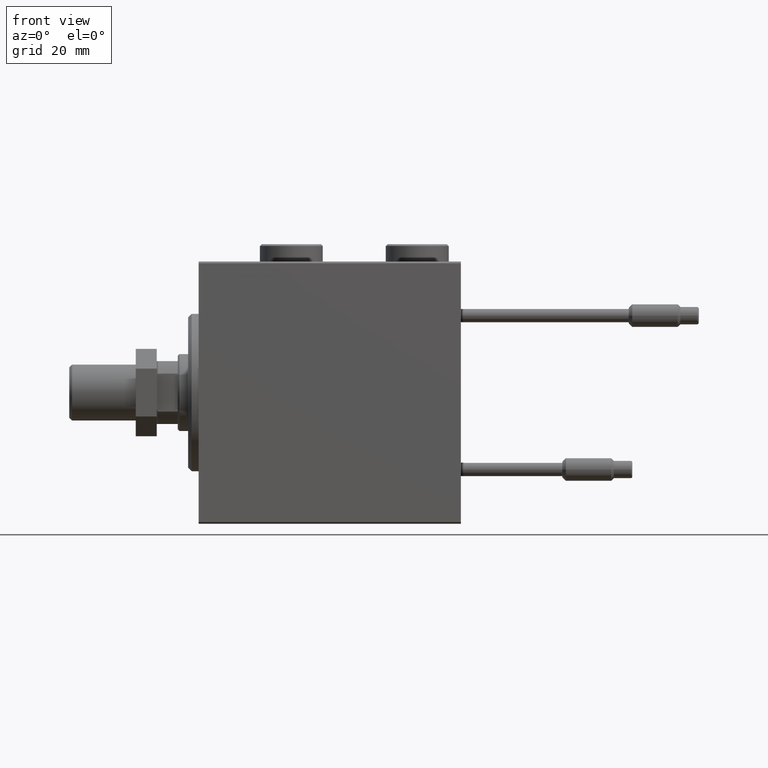
[diagram: clean part render]
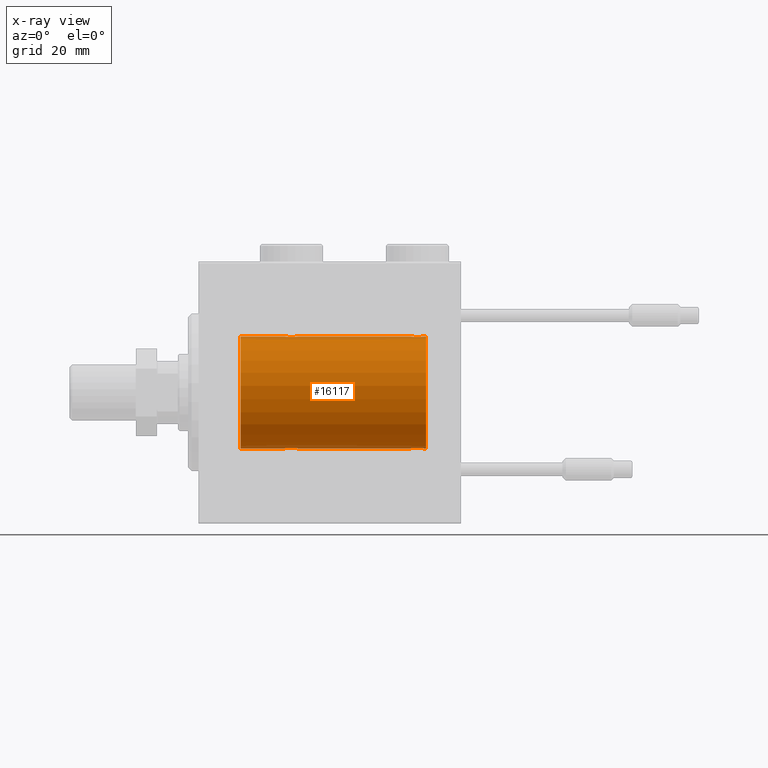
[diagram: x-ray — body ghosted, one internal face saturated and labeled with its STEP entity id]
A machine part, front view, then the same camera in x-ray: the body is ghosted and one INTERNAL B-rep face — a face not visible from any outside direction — is saturated and labeled: STEP entity #16117.
In plain terms, the highlighted cylindrical surface (partial cylindrical patch) has radius 16 mm, axis along (-1, -0, -0).
Its self-contained STEP definition (entity closure, byte-faithful):
#400 = CARTESIAN_POINT ( 'NONE',  ( 26.76370462878175971, -1.986819684797417995, -15.87618369521984185 ) ) ;
#1647 = CARTESIAN_POINT ( 'NONE',  ( 24.90236864042801557, -1.231048876942801407, -15.95364199493483426 ) ) ;
#1756 = CARTESIAN_POINT ( 'NONE',  ( 60.49999999999999289, -9.573340169032840992E-15, -16.00000000000000000 ) ) ;
#1927 = VERTEX_POINT ( 'NONE', #45687 ) ;
#2026 = CARTESIAN_POINT ( 'NONE',  ( 63.01937114547926910, -1.935780515549996306, -15.88248768234623221 ) ) ;
#2179 = CARTESIAN_POINT ( 'NONE',  ( 28.49999999999999645, 1.959434851238818770E-15, -16.00000000000000000 ) ) ;
#2937 = CARTESIAN_POINT ( 'NONE',  ( 62.36633336824382212, -1.999904855391102743, 15.87451985347842687 ) ) ;
#3730 = VERTEX_POINT ( 'NONE', #50476 ) ;
#3732 = CARTESIAN_POINT ( 'NONE',  ( 61.49679215208682592, -1.735114343256364711, 15.90580722143557502 ) ) ;
#4243 = CARTESIAN_POINT ( 'NONE',  ( 63.82104334803405266, -1.507256214862773058, 15.92911555180482175 ) ) ;
#4416 = CARTESIAN_POINT ( 'NONE',  ( 25.28178127159715416, -1.591545514129671046, -15.92081325887754950 ) ) ;
#5172 = CIRCLE ( 'NONE', #41287, 16.00000000000000000 ) ;
#5533 = CARTESIAN_POINT ( 'NONE',  ( 61.98335998918948775, -1.936513707523816574, -15.88239801746205515 ) ) ;
#5582 = AXIS2_PLACEMENT_3D ( 'NONE', #53195, #49416, #39549 ) ;
#5689 = CARTESIAN_POINT ( 'NONE',  ( 26.23917179650635845, -1.987201773464429833, -15.87613558886576115 ) ) ;
#5950 = CARTESIAN_POINT ( 'NONE',  ( 24.50000000000001066, -0.2645044045393414867, -16.00000000000000711 ) ) ;
#6122 = CARTESIAN_POINT ( 'NONE',  ( 60.50000000000000711, -2.739595594696790848E-23, 16.00000000000000000 ) ) ;
#6227 = CARTESIAN_POINT ( 'NONE',  ( 25.61407850031505262, -1.797863738508699516, -15.89874935709250892 ) ) ;
#7277 = DIRECTION ( 'NONE',  ( -1.000000000000000000, -0.000000000000000000, -0.000000000000000000 ) ) ;
#7427 = VERTEX_POINT ( 'NONE', #8244 ) ;
#7765 = CARTESIAN_POINT ( 'NONE',  ( 60.90061418674617499, -1.228793614424115166, 15.95381972293796835 ) ) ;
#7914 = CARTESIAN_POINT ( 'NONE',  ( 25.27971966521589664, -1.589957129871035768, 15.92097237843274549 ) ) ;
#8034 = CARTESIAN_POINT ( 'NONE',  ( 61.98062885452072379, -1.935780515549986980, 15.88248768234623576 ) ) ;
#8244 = CARTESIAN_POINT ( 'NONE',  ( 60.49999999999999289, -9.573340169032840992E-15, -16.00000000000000000 ) ) ;
#8396 = ORIENTED_EDGE ( 'NONE', *, *, #41388, .T. ) ;
#8437 = CARTESIAN_POINT ( 'NONE',  ( 25.61153859170720537, -1.796613193944160969, 15.89889131367403685 ) ) ;
#9090 = CARTESIAN_POINT ( 'NONE',  ( 63.71821872840284584, -1.591545514129670380, 15.92081325887754950 ) ) ;
#9131 = EDGE_CURVE ( 'NONE', #7427, #26266, #33365, .T. ) ;
#9353 = CARTESIAN_POINT ( 'NONE',  ( 63.50078365753401499, -1.736521253711142521, 15.90565326803670665 ) ) ;
#9752 = VERTEX_POINT ( 'NONE', #10511 ) ;
#10016 = VERTEX_POINT ( 'NONE', #6122 ) ;
#10107 = CARTESIAN_POINT ( 'NONE',  ( 62.63366663175617788, -1.999904855391111846, -15.87451985347842331 ) ) ;
#10269 = CARTESIAN_POINT ( 'NONE',  ( 27.14636362870457731, -1.897207606501644550, -15.88720136683946826 ) ) ;
#10283 = ORIENTED_EDGE ( 'NONE', *, *, #9131, .T. ) ;
#10343 = EDGE_CURVE ( 'NONE', #10016, #30045, #24104, .T. ) ;
#10379 = CARTESIAN_POINT ( 'NONE',  ( 61.28178127159713284, -1.591545514129680150, -15.92081325887754417 ) ) ;
#10510 = VECTOR ( 'NONE', #42993, 1000.000000000000000 ) ;
#10511 = CARTESIAN_POINT ( 'NONE',  ( 65.00000000000000000, 1.959434878635765131E-15, -16.00000000000000000 ) ) ;
#11828 = CARTESIAN_POINT ( 'NONE',  ( 60.75183372993787145, -1.005876079953899493, 15.97016854943969832 ) ) ;
#12355 = CARTESIAN_POINT ( 'NONE',  ( 62.23629537121826871, -1.986819684797415331, 15.87618369521984896 ) ) ;
#12503 = CARTESIAN_POINT ( 'NONE',  ( 26.23629537121825095, -1.986819684797424435, 15.87618369521983475 ) ) ;
#13253 = ORIENTED_EDGE ( 'NONE', *, *, #19918, .F. ) ;
#13512 = CARTESIAN_POINT ( 'NONE',  ( 26.36919591423421494, -2.000094120337574388, -15.87449600834270669 ) ) ;
#13898 = LINE ( 'NONE', #27114, #10510 ) ;
#14046 = CARTESIAN_POINT ( 'NONE',  ( 27.01937114547927266, -1.935780515549990088, -15.88248768234623221 ) ) ;
#14160 = CARTESIAN_POINT ( 'NONE',  ( 64.50000000000000000, -0.2611263091397180713, -16.00000000000000355 ) ) ;
#14423 = CARTESIAN_POINT ( 'NONE',  ( 64.24816627006210012, -1.005876079953901048, -15.97016854943970188 ) ) ;
#14961 = CARTESIAN_POINT ( 'NONE',  ( 24.50000000000000000, -2.739635037742051899E-23, 16.00000000000000000 ) ) ;
#15385 = EDGE_CURVE ( 'NONE', #9752, #16368, #45167, .T. ) ;
#15630 = FACE_OUTER_BOUND ( 'NONE', #36864, .T. ) ;
#15667 = VERTEX_POINT ( 'NONE', #43985 ) ;
#15744 = CARTESIAN_POINT ( 'NONE',  ( 27.71821872840285295, -1.591545514129674821, 15.92081325887754595 ) ) ;
#15866 = CARTESIAN_POINT ( 'NONE',  ( 60.55248858968734282, -0.5244724041436312767, 15.99321727742821686 ) ) ;
#16010 = CARTESIAN_POINT ( 'NONE',  ( 26.63080408576578861, -2.000094120337581050, 15.87449600834271735 ) ) ;
#16117 = ADVANCED_FACE ( 'NONE', ( #15630 ), #32093, .F. ) ;
#16158 = DIRECTION ( 'NONE',  ( 0.000000000000000000, 0.000000000000000000, 1.000000000000000000 ) ) ;
#16219 = B_SPLINE_CURVE_WITH_KNOTS ( 'NONE', 3,
 ( #44677, #36352, #15866, #11828, #7765, #48976, #40638, #3732, #20167, #44945, #8034, #12355, #2937, #17712, #21216, #29321, #37130, #41698, #9353, #9090, #4243, #34168, #17453, #41156, #21757, #45735 ),
 .UNSPECIFIED., .F., .F.,
 ( 4, 2, 2, 2, 2, 2, 2, 2, 2, 2, 2, 2, 4 ),
 ( 0.006259031236593833904, 0.007041222816026886447, 0.007823414395459939857, 0.008214510185176465695, 0.008605605974892991533, 0.008996701764609517371, 0.009387797554326043209, 0.009778893344042589864, 0.01016998913375913652, 0.01056108492347568317, 0.01095218071319222809, 0.01173437229262529191, 0.01251656387205835400 ),
 .UNSPECIFIED. ) ;
#16269 = CARTESIAN_POINT ( 'NONE',  ( 24.75183372993787856, -1.005876079953904600, 15.97016854943970543 ) ) ;
#16368 = VERTEX_POINT ( 'NONE', #22602 ) ;
#16837 = CARTESIAN_POINT ( 'NONE',  ( 24.75321871145306574, -1.008257970366812195, -15.97001510549667458 ) ) ;
#17453 = CARTESIAN_POINT ( 'NONE',  ( 64.24678128854692716, -1.008257970366806422, 15.97001510549667458 ) ) ;
#17712 = CARTESIAN_POINT ( 'NONE',  ( 62.63080408576578151, -2.000094120337570835, 15.87449600834271024 ) ) ;
#18357 = CARTESIAN_POINT ( 'NONE',  ( 28.24816627006210368, -1.005876079953898605, -15.97016854943969832 ) ) ;
#18358 = B_SPLINE_CURVE_WITH_KNOTS ( 'NONE', 3,
 ( #2179, #26716, #38297, #18357, #41336, #35077, #34543, #29960, #30228, #10269, #14046, #400, #28963, #13512, #5689, #45382, #51228, #6227, #24917, #4416, #46633, #1647, #16837, #50677, #5950, #33281 ),
 .UNSPECIFIED., .F., .F.,
 ( 4, 2, 2, 2, 2, 2, 2, 2, 2, 2, 2, 2, 4 ),
 ( 0.006259031236593879007, 0.007041222816026946295, 0.007823414395460014450, 0.008214510185176547227, 0.008605605974893081739, 0.008996701764609614516, 0.009387797554326147292, 0.009778893344042681804, 0.01016998913375921632, 0.01056108492347574909, 0.01095218071319228187, 0.01173437229262534742, 0.01251656387205841471 ),
 .UNSPECIFIED. ) ;
#19092 = VECTOR ( 'NONE', #25804, 1000.000000000000000 ) ;
#19406 = CARTESIAN_POINT ( 'NONE',  ( 65.00000000000000000, 0.000000000000000000, 0.000000000000000000 ) ) ;
#19918 = EDGE_CURVE ( 'NONE', #16368, #1927, #35378, .T. ) ;
#20053 = CARTESIAN_POINT ( 'NONE',  ( 27.82104334803405266, -1.507256214862787713, 15.92911555180482530 ) ) ;
#20167 = CARTESIAN_POINT ( 'NONE',  ( 61.61153859170720182, -1.796613193944150311, 15.89889131367403685 ) ) ;
#20310 = CARTESIAN_POINT ( 'NONE',  ( 28.49999999999999645, 1.959434851238818770E-15, -16.00000000000000000 ) ) ;
#21091 = ORIENTED_EDGE ( 'NONE', *, *, #51347, .F. ) ;
#21216 = CARTESIAN_POINT ( 'NONE',  ( 62.76082820349364511, -1.987201773464424504, 15.87613558886576115 ) ) ;
#21757 = CARTESIAN_POINT ( 'NONE',  ( 64.50000000000002842, -0.2645044045393374899, 16.00000000000000711 ) ) ;
#22511 = CARTESIAN_POINT ( 'NONE',  ( 62.76370462878178103, -1.986819684797425767, -15.87618369521983475 ) ) ;
#22602 = CARTESIAN_POINT ( 'NONE',  ( 65.00000000000000000, 0.000000000000000000, 16.00000000000000000 ) ) ;
#22784 = CARTESIAN_POINT ( 'NONE',  ( 61.49921634246595659, -1.736521253711153845, -15.90565326803670665 ) ) ;
#23081 = ORIENTED_EDGE ( 'NONE', *, *, #15385, .F. ) ;
#23836 = CARTESIAN_POINT ( 'NONE',  ( 26.36633336824380436, -1.999904855391111402, 15.87451985347842687 ) ) ;
#24101 = CARTESIAN_POINT ( 'NONE',  ( 24.50000000000000000, -2.739635037742051899E-23, 16.00000000000000000 ) ) ;
#24104 = LINE ( 'NONE', #32210, #44086 ) ;
#24260 = CARTESIAN_POINT ( 'NONE',  ( 65.00000000000000000, 0.000000000000000000, 16.00000000000000000 ) ) ;
#24370 = CARTESIAN_POINT ( 'NONE',  ( 26.76082820349364866, -1.987201773464435828, 15.87613558886576470 ) ) ;
#24501 = ORIENTED_EDGE ( 'NONE', *, *, #50887, .T. ) ;
#24631 = CARTESIAN_POINT ( 'NONE',  ( 28.24678128854693426, -1.008257970366811751, 15.97001510549667103 ) ) ;
#24703 = VECTOR ( 'NONE', #52579, 1000.000000000000000 ) ;
#24744 = B_SPLINE_CURVE_WITH_KNOTS ( 'NONE', 3,
 ( #24101, #27890, #48859, #16269, #49401, #40249, #7914, #40521, #8437, #31933, #49125, #12503, #23836, #16010, #24370, #28942, #52381, #28677, #40789, #15744, #20053, #45357, #24631, #36505, #45100, #24894 ),
 .UNSPECIFIED., .F., .F.,
 ( 4, 2, 2, 2, 2, 2, 2, 2, 2, 2, 2, 2, 4 ),
 ( 0.006259031236593858190, 0.007041222816026928080, 0.007823414395459998838, 0.008214510185176533349, 0.008605605974893067861, 0.008996701764609604107, 0.009387797554326138619, 0.009778893344042673130, 0.01016998913375920938, 0.01056108492347574389, 0.01095218071319227840, 0.01173437229262534048, 0.01251656387205840430 ),
 .UNSPECIFIED. ) ;
#24784 = LINE ( 'NONE', #24260, #29487 ) ;
#24894 = CARTESIAN_POINT ( 'NONE',  ( 28.49999999999999645, -1.207828523974853969E-15, 16.00000000000000000 ) ) ;
#24917 = CARTESIAN_POINT ( 'NONE',  ( 25.49921634246596369, -1.736521253711144741, -15.90565326803670665 ) ) ;
#25755 = CARTESIAN_POINT ( 'NONE',  ( 62.36919591423421849, -2.000094120337583714, -15.87449600834270669 ) ) ;
#25804 = DIRECTION ( 'NONE',  ( -1.000000000000000000, -0.000000000000000000, -0.000000000000000000 ) ) ;
#26025 = CARTESIAN_POINT ( 'NONE',  ( 63.72028033478409270, -1.589957129871035546, -15.92097237843274549 ) ) ;
#26266 = VERTEX_POINT ( 'NONE', #20310 ) ;
#26300 = CARTESIAN_POINT ( 'NONE',  ( 64.09938581325380369, -1.228793614424120051, -15.95381972293796480 ) ) ;
#26716 = CARTESIAN_POINT ( 'NONE',  ( 28.50000000000000000, -0.2611263091397177383, -16.00000000000000000 ) ) ;
#27114 = CARTESIAN_POINT ( 'NONE',  ( 65.00000000000000000, 1.959434878635765131E-15, -16.00000000000000000 ) ) ;
#27784 = VECTOR ( 'NONE', #38837, 1000.000000000000000 ) ;
#27890 = CARTESIAN_POINT ( 'NONE',  ( 24.50000000000000355, -0.2611263091397209579, 16.00000000000000000 ) ) ;
#28677 = CARTESIAN_POINT ( 'NONE',  ( 27.38592149968496514, -1.797863738508701736, 15.89874935709250892 ) ) ;
#28797 = DIRECTION ( 'NONE',  ( -1.000000000000000000, 0.000000000000000000, 0.000000000000000000 ) ) ;
#28875 = B_SPLINE_CURVE_WITH_KNOTS ( 'NONE', 3,
 ( #47277, #14160, #46750, #14423, #26300, #34653, #26025, #30613, #42708, #47018, #2026, #22511, #10107, #25755, #30870, #5533, #42173, #29813, #22784, #10379, #30341, #34123, #50521, #42974, #30068, #1756 ),
 .UNSPECIFIED., .F., .F.,
 ( 4, 2, 2, 2, 2, 2, 2, 2, 2, 2, 2, 2, 4 ),
 ( 0.006259031236593884211, 0.007041222816026949764, 0.007823414395460014450, 0.008214510185176547227, 0.008605605974893080004, 0.008996701764609611046, 0.009387797554326143823, 0.009778893344042676600, 0.01016998913375920938, 0.01056108492347574042, 0.01095218071319227146, 0.01173437229262535089, 0.01251656387205843032 ),
 .UNSPECIFIED. ) ;
#28942 = CARTESIAN_POINT ( 'NONE',  ( 27.01664001081050515, -1.936513707523814354, 15.88239801746204805 ) ) ;
#28963 = CARTESIAN_POINT ( 'NONE',  ( 26.63366663175618854, -1.999904855391105851, -15.87451985347842687 ) ) ;
#29241 = EDGE_CURVE ( 'NONE', #44967, #53079, #5172, .T. ) ;
#29321 = CARTESIAN_POINT ( 'NONE',  ( 63.01664001081051936, -1.936513707523802585, 15.88239801746204805 ) ) ;
#29487 = VECTOR ( 'NONE', #40415, 1000.000000000000000 ) ;
#29813 = CARTESIAN_POINT ( 'NONE',  ( 61.61407850031504552, -1.797863738508707510, -15.89874935709250892 ) ) ;
#29960 = CARTESIAN_POINT ( 'NONE',  ( 27.50320784791318118, -1.735114343256362712, -15.90580722143558212 ) ) ;
#29967 = LINE ( 'NONE', #47175, #27784 ) ;
#30045 = VERTEX_POINT ( 'NONE', #46540 ) ;
#30068 = CARTESIAN_POINT ( 'NONE',  ( 60.49999999999999289, -0.2645044045393447618, -16.00000000000000355 ) ) ;
#30228 = CARTESIAN_POINT ( 'NONE',  ( 27.38846140829281595, -1.796613193944150755, -15.89889131367402975 ) ) ;
#30338 = ORIENTED_EDGE ( 'NONE', *, *, #29241, .T. ) ;
#30341 = CARTESIAN_POINT ( 'NONE',  ( 61.17895665196596156, -1.507256214862792820, -15.92911555180481820 ) ) ;
#30529 = VERTEX_POINT ( 'NONE', #14961 ) ;
#30613 = CARTESIAN_POINT ( 'NONE',  ( 63.50320784791315987, -1.735114343256370040, -15.90580722143557502 ) ) ;
#30870 = CARTESIAN_POINT ( 'NONE',  ( 62.23917179650635489, -1.987201773464436716, -15.87613558886576826 ) ) ;
#31457 = AXIS2_PLACEMENT_3D ( 'NONE', #19406, #7277, #16158 ) ;
#31933 = CARTESIAN_POINT ( 'NONE',  ( 25.85363637129542624, -1.897207606501653432, 15.88720136683947182 ) ) ;
#32093 = CYLINDRICAL_SURFACE ( 'NONE', #31457, 16.00000000000000000 ) ;
#32210 = CARTESIAN_POINT ( 'NONE',  ( 65.00000000000000000, 0.000000000000000000, 16.00000000000000000 ) ) ;
#32843 = DIRECTION ( 'NONE',  ( 0.000000000000000000, 0.000000000000000000, 1.000000000000000000 ) ) ;
#33281 = CARTESIAN_POINT ( 'NONE',  ( 24.50000000000000000, -2.745261152005884500E-15, -16.00000000000000000 ) ) ;
#33365 = LINE ( 'NONE', #33631, #19092 ) ;
#33631 = CARTESIAN_POINT ( 'NONE',  ( 65.00000000000000000, 1.959434878635765131E-15, -16.00000000000000000 ) ) ;
#34123 = CARTESIAN_POINT ( 'NONE',  ( 60.90236864042802267, -1.231048876942808956, -15.95364199493483426 ) ) ;
#34168 = CARTESIAN_POINT ( 'NONE',  ( 64.09763135957199154, -1.231048876942787196, 15.95364199493483781 ) ) ;
#34543 = CARTESIAN_POINT ( 'NONE',  ( 27.72028033478411757, -1.589957129871027330, -15.92097237843274904 ) ) ;
#34653 = CARTESIAN_POINT ( 'NONE',  ( 63.82304844713207359, -1.505501573616973898, -15.92928245046055302 ) ) ;
#35077 = CARTESIAN_POINT ( 'NONE',  ( 27.82304844713206293, -1.505501573616970568, -15.92928245046054769 ) ) ;
#35378 = LINE ( 'NONE', #43447, #24703 ) ;
#36352 = CARTESIAN_POINT ( 'NONE',  ( 60.50000000000000711, -0.2611263091397199587, 16.00000000000000000 ) ) ;
#36505 = CARTESIAN_POINT ( 'NONE',  ( 28.44674004695639624, -0.5272875822566815973, 15.99312147175146670 ) ) ;
#36835 = CARTESIAN_POINT ( 'NONE',  ( 11.99999999999999645, 1.959434878635765131E-15, -16.00000000000000000 ) ) ;
#36864 = EDGE_LOOP ( 'NONE', ( #23081, #52316, #52764, #10283, #49084, #24501, #30338, #21091, #51575, #42464, #8396, #13253 ) ) ;
#37130 = CARTESIAN_POINT ( 'NONE',  ( 63.14376670717340545, -1.898087287925291466, 15.88709570026284190 ) ) ;
#38297 = CARTESIAN_POINT ( 'NONE',  ( 28.44751141031269626, -0.5244724041436300555, -15.99321727742820975 ) ) ;
#38837 = DIRECTION ( 'NONE',  ( -1.000000000000000000, -0.000000000000000000, -0.000000000000000000 ) ) ;
#39549 = DIRECTION ( 'NONE',  ( 0.000000000000000000, 0.000000000000000000, 1.000000000000000000 ) ) ;
#40249 = CARTESIAN_POINT ( 'NONE',  ( 25.17695155286792286, -1.505501573616977673, 15.92928245046054947 ) ) ;
#40415 = DIRECTION ( 'NONE',  ( -1.000000000000000000, -0.000000000000000000, -0.000000000000000000 ) ) ;
#40521 = CARTESIAN_POINT ( 'NONE',  ( 25.49679215208682592, -1.735114343256370262, 15.90580722143557502 ) ) ;
#40638 = CARTESIAN_POINT ( 'NONE',  ( 61.27971966521590730, -1.589957129871031549, 15.92097237843274549 ) ) ;
#40789 = CARTESIAN_POINT ( 'NONE',  ( 27.50078365753405407, -1.736521253711149182, 15.90565326803671375 ) ) ;
#41156 = CARTESIAN_POINT ( 'NONE',  ( 64.44674004695637848, -0.5272875822566772674, 15.99312147175147381 ) ) ;
#41287 = AXIS2_PLACEMENT_3D ( 'NONE', #41436, #28797, #32843 ) ;
#41336 = CARTESIAN_POINT ( 'NONE',  ( 28.09938581325380369, -1.228793614424118497, -15.95381972293797013 ) ) ;
#41388 = EDGE_CURVE ( 'NONE', #10016, #1927, #16219, .T. ) ;
#41436 = CARTESIAN_POINT ( 'NONE',  ( 11.99999999999999645, 0.000000000000000000, 0.000000000000000000 ) ) ;
#41698 = CARTESIAN_POINT ( 'NONE',  ( 63.38592149968495448, -1.797863738508690190, 15.89874935709250181 ) ) ;
#42173 = CARTESIAN_POINT ( 'NONE',  ( 61.85623329282659455, -1.898087287925307232, -15.88709570026284545 ) ) ;
#42464 = ORIENTED_EDGE ( 'NONE', *, *, #10343, .F. ) ;
#42708 = CARTESIAN_POINT ( 'NONE',  ( 63.38846140829282660, -1.796613193944156084, -15.89889131367402975 ) ) ;
#42974 = CARTESIAN_POINT ( 'NONE',  ( 60.55325995304358599, -0.5272875822566914783, -15.99312147175147025 ) ) ;
#42993 = DIRECTION ( 'NONE',  ( -1.000000000000000000, -0.000000000000000000, -0.000000000000000000 ) ) ;
#43447 = CARTESIAN_POINT ( 'NONE',  ( 65.00000000000000000, 0.000000000000000000, 16.00000000000000000 ) ) ;
#43985 = CARTESIAN_POINT ( 'NONE',  ( 64.50000000000000000, 1.959434851248285101E-15, -16.00000000000000000 ) ) ;
#44086 = VECTOR ( 'NONE', #47817, 1000.000000000000000 ) ;
#44677 = CARTESIAN_POINT ( 'NONE',  ( 60.50000000000000711, -2.739595594696790848E-23, 16.00000000000000000 ) ) ;
#44945 = CARTESIAN_POINT ( 'NONE',  ( 61.85363637129541559, -1.897207606501642774, 15.88720136683947537 ) ) ;
#44967 = VERTEX_POINT ( 'NONE', #36835 ) ;
#45100 = CARTESIAN_POINT ( 'NONE',  ( 28.49999999999999289, -0.2645044045393371013, 16.00000000000000000 ) ) ;
#45167 = CIRCLE ( 'NONE', #5582, 16.00000000000000000 ) ;
#45357 = CARTESIAN_POINT ( 'NONE',  ( 28.09763135957198799, -1.231048876942802961, 15.95364199493483781 ) ) ;
#45382 = CARTESIAN_POINT ( 'NONE',  ( 25.98335998918948775, -1.936513707523809469, -15.88239801746204805 ) ) ;
#45687 = CARTESIAN_POINT ( 'NONE',  ( 64.49999999999998579, 3.415560487804343463E-15, 16.00000000000000000 ) ) ;
#45735 = CARTESIAN_POINT ( 'NONE',  ( 64.49999999999998579, 3.415560487804343463E-15, 16.00000000000000000 ) ) ;
#46081 = EDGE_CURVE ( 'NONE', #15667, #7427, #28875, .T. ) ;
#46540 = CARTESIAN_POINT ( 'NONE',  ( 28.49999999999999645, -1.207828523974853969E-15, 16.00000000000000000 ) ) ;
#46633 = CARTESIAN_POINT ( 'NONE',  ( 25.17895665196595445, -1.507256214862784383, -15.92911555180481820 ) ) ;
#46750 = CARTESIAN_POINT ( 'NONE',  ( 64.44751141031268560, -0.5244724041436317208, -15.99321727742820620 ) ) ;
#47018 = CARTESIAN_POINT ( 'NONE',  ( 63.14636362870457020, -1.897207606501650989, -15.88720136683947182 ) ) ;
#47175 = CARTESIAN_POINT ( 'NONE',  ( 65.00000000000000000, 1.959434878635765131E-15, -16.00000000000000000 ) ) ;
#47277 = CARTESIAN_POINT ( 'NONE',  ( 64.50000000000000000, 1.959434851248285101E-15, -16.00000000000000000 ) ) ;
#47817 = DIRECTION ( 'NONE',  ( -1.000000000000000000, -0.000000000000000000, -0.000000000000000000 ) ) ;
#48342 = EDGE_CURVE ( 'NONE', #26266, #3730, #18358, .T. ) ;
#48652 = CARTESIAN_POINT ( 'NONE',  ( 11.99999999999999645, 0.000000000000000000, 16.00000000000000000 ) ) ;
#48661 = EDGE_CURVE ( 'NONE', #30529, #30045, #24744, .T. ) ;
#48859 = CARTESIAN_POINT ( 'NONE',  ( 24.55248858968731085, -0.5244724041436337192, 15.99321727742820975 ) ) ;
#48976 = CARTESIAN_POINT ( 'NONE',  ( 61.17695155286794062, -1.505501573616968791, 15.92928245046055302 ) ) ;
#49084 = ORIENTED_EDGE ( 'NONE', *, *, #48342, .T. ) ;
#49125 = CARTESIAN_POINT ( 'NONE',  ( 25.98062885452072734, -1.935780515549995862, 15.88248768234623221 ) ) ;
#49401 = CARTESIAN_POINT ( 'NONE',  ( 24.90061418674620342, -1.228793614424124714, 15.95381972293797368 ) ) ;
#49416 = DIRECTION ( 'NONE',  ( -1.000000000000000000, 0.000000000000000000, 0.000000000000000000 ) ) ;
#50476 = CARTESIAN_POINT ( 'NONE',  ( 24.50000000000000000, -2.745261152005884500E-15, -16.00000000000000000 ) ) ;
#50521 = CARTESIAN_POINT ( 'NONE',  ( 60.75321871145306574, -1.008257970366820189, -15.97001510549667813 ) ) ;
#50677 = CARTESIAN_POINT ( 'NONE',  ( 24.55325995304361086, -0.5272875822566830406, -15.99312147175148091 ) ) ;
#50887 = EDGE_CURVE ( 'NONE', #3730, #44967, #13898, .T. ) ;
#51228 = CARTESIAN_POINT ( 'NONE',  ( 25.85623329282659455, -1.898087287925299016, -15.88709570026284545 ) ) ;
#51347 = EDGE_CURVE ( 'NONE', #30529, #53079, #24784, .T. ) ;
#51575 = ORIENTED_EDGE ( 'NONE', *, *, #48661, .T. ) ;
#52229 = EDGE_CURVE ( 'NONE', #9752, #15667, #29967, .T. ) ;
#52316 = ORIENTED_EDGE ( 'NONE', *, *, #52229, .T. ) ;
#52381 = CARTESIAN_POINT ( 'NONE',  ( 27.14376670717340545, -1.898087287925302125, 15.88709570026284545 ) ) ;
#52579 = DIRECTION ( 'NONE',  ( -1.000000000000000000, -0.000000000000000000, -0.000000000000000000 ) ) ;
#52764 = ORIENTED_EDGE ( 'NONE', *, *, #46081, .T. ) ;
#53079 = VERTEX_POINT ( 'NONE', #48652 ) ;
#53195 = CARTESIAN_POINT ( 'NONE',  ( 65.00000000000000000, 0.000000000000000000, 0.000000000000000000 ) ) ;